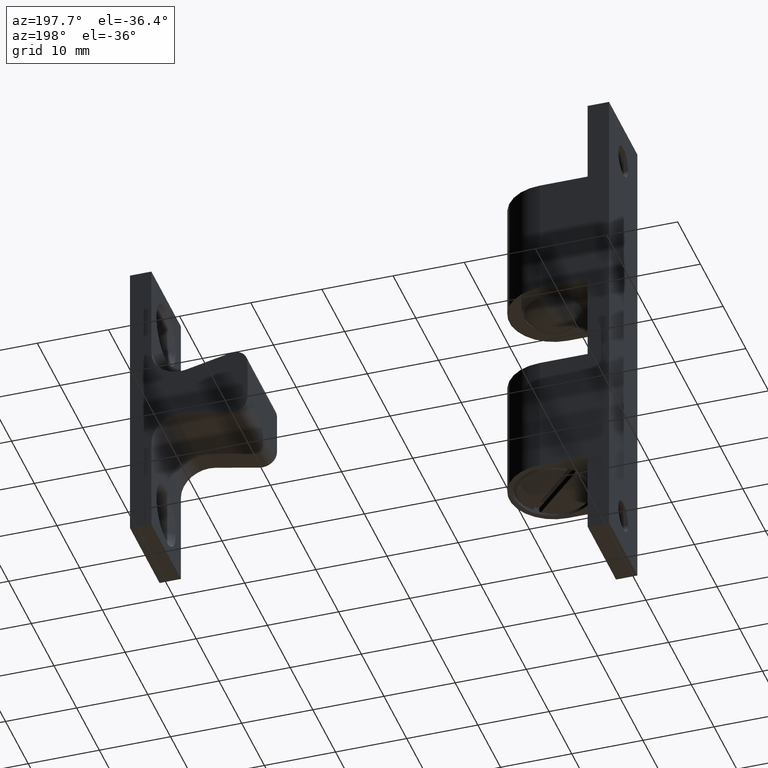
[diagram: clean part render]
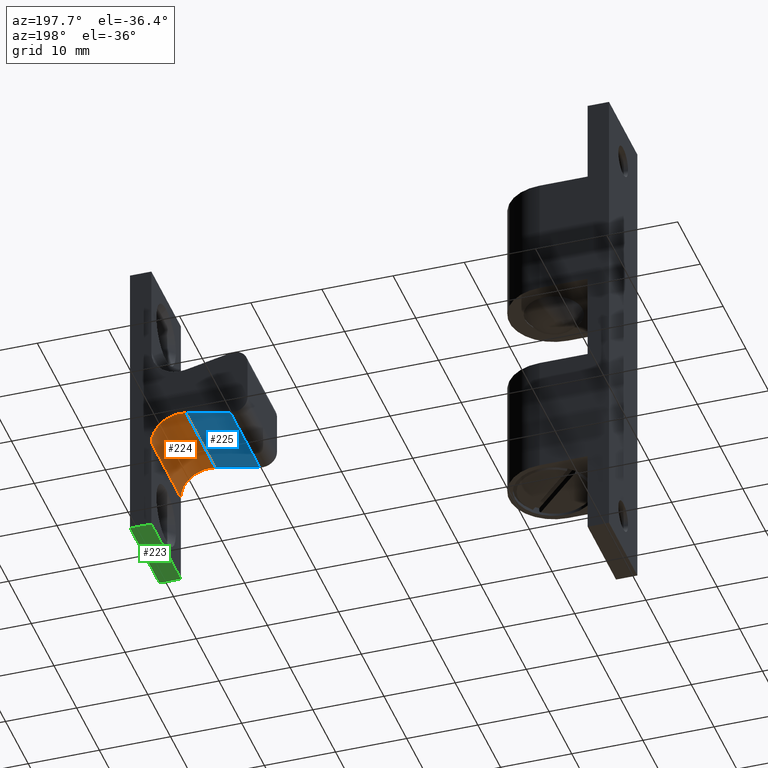
[diagram: same view with three faces highlighted in distinct colors, each labeled with its STEP entity id]
A machine part, auxiliary view with three faces highlighted in distinct colors.
Their STEP definitions:

[orange] entity #224 — the highlighted cylindrical surface (edge-blend (fillet) strip) has radius 4.0004 mm, axis along (-0, -1, -0).
#224=ADVANCED_FACE('',(#480),#479,.F.);
#479=CYLINDRICAL_SURFACE('',#1148,4.00043991056E+00);
#480=FACE_OUTER_BOUND('',#1149,.T.);
#1145=CARTESIAN_POINT('',(6.02334519901E+01,-9.93500000000E+02,-7.50048131368E+00));
#1146=DIRECTION('',(-0.00000000000E+00,-1.00000000000E+00,-0.00000000000E+00));
#1147=DIRECTION('',(-0.00000000000E+00,-0.00000000000E+00,-1.00000000000E+00));
#1148=AXIS2_PLACEMENT_3D('',#1145,#1146,#1147);
#1149=EDGE_LOOP('',(#1562,#1563,#1564,#1565));
#1562=ORIENTED_EDGE('',*,*,#1872,.F.);
#1563=ORIENTED_EDGE('',*,*,#1868,.F.);
#1564=ORIENTED_EDGE('',*,*,#1851,.T.);
#1565=ORIENTED_EDGE('',*,*,#1873,.T.);
#1851=EDGE_CURVE('',#2249,#2242,#2250,.T.);
#1868=EDGE_CURVE('',#2249,#2351,#2365,.T.);
#1872=EDGE_CURVE('',#2351,#2391,#2392,.T.);
#1873=EDGE_CURVE('',#2242,#2391,#2398,.T.);
#2242=VERTEX_POINT('',#3303);
#2249=VERTEX_POINT('',#3307);
#2250=CIRCLE('',#3311,4.00043991056E+00);
#2351=VERTEX_POINT('',#3369);
#2365=LINE('',#3377,#3378);
#2391=VERTEX_POINT('',#3393);
#2392=CIRCLE('',#3397,4.00043991056E+00);
#2398=LINE('',#3398,#3399);
#3303=CARTESIAN_POINT('',(5.93778917893E+01,-6.50000000000E+00,-3.59260001803E+00));
#3307=CARTESIAN_POINT('',(6.42338919006E+01,-6.50000000000E+00,-7.50048131368E+00));
#3308=CARTESIAN_POINT('',(6.02334519901E+01,-6.50000000000E+00,-7.50048131368E+00));
#3309=DIRECTION('',(0.00000000000E+00,-1.00000000000E+00,0.00000000000E+00));
#3310=DIRECTION('',(-0.00000000000E+00,-0.00000000000E+00,-1.00000000000E+00));
#3311=AXIS2_PLACEMENT_3D('',#3308,#3309,#3310);
#3369=CARTESIAN_POINT('',(6.42338919006E+01,6.50000000000E+00,-7.50048131368E+00));
#3377=CARTESIAN_POINT('',(6.42338919006E+01,-6.50000000000E+00,-7.50048131368E+00));
#3378=VECTOR('',#3379,1.30000000000E+01);
#3379=DIRECTION('',(0.00000000000E+00,1.00000000000E+00,0.00000000000E+00));
#3393=CARTESIAN_POINT('',(5.93778917893E+01,6.50000000000E+00,-3.59260001803E+00));
#3394=CARTESIAN_POINT('',(6.02334519901E+01,6.50000000000E+00,-7.50048131368E+00));
#3395=DIRECTION('',(0.00000000000E+00,-1.00000000000E+00,0.00000000000E+00));
#3396=DIRECTION('',(-0.00000000000E+00,-0.00000000000E+00,-1.00000000000E+00));
#3397=AXIS2_PLACEMENT_3D('',#3394,#3395,#3396);
#3398=CARTESIAN_POINT('',(5.93778917893E+01,-6.50000000000E+00,-3.59260001803E+00));
#3399=VECTOR('',#3400,1.30000000000E+01);
#3400=DIRECTION('',(0.00000000000E+00,1.00000000000E+00,0.00000000000E+00));

[blue] entity #225 — the highlighted planar face has unit normal (-0.2139, 0, 0.9769).
#225=ADVANCED_FACE('',(#490),#489,.F.);
#489=PLANE('',#1153);
#490=FACE_OUTER_BOUND('',#1154,.T.);
#1150=CARTESIAN_POINT('',(5.25109661573E+01,-7.80000000000E+00,-5.09598951100E+00));
#1151=DIRECTION('',(-2.13866509064E-01,0.00000000000E+00,9.76862895344E-01));
#1152=DIRECTION('',(9.76862895344E-01,0.00000000000E+00,2.13866509064E-01));
#1153=AXIS2_PLACEMENT_3D('',#1150,#1151,#1152);
#1154=EDGE_LOOP('',(#1566,#1567,#1568,#1569));
#1566=ORIENTED_EDGE('',*,*,#1874,.T.);
#1567=ORIENTED_EDGE('',*,*,#1873,.F.);
#1568=ORIENTED_EDGE('',*,*,#1850,.F.);
#1569=ORIENTED_EDGE('',*,*,#1875,.T.);
#1850=EDGE_CURVE('',#2235,#2242,#2243,.T.);
#1873=EDGE_CURVE('',#2242,#2391,#2398,.T.);
#1874=EDGE_CURVE('',#2404,#2391,#2405,.T.);
#1875=EDGE_CURVE('',#2235,#2404,#2411,.T.);
#2235=VERTEX_POINT('',#3298);
#2242=VERTEX_POINT('',#3303);
#2243=LINE('',#3304,#3305);
#2391=VERTEX_POINT('',#3393);
#2398=LINE('',#3398,#3399);
#2404=VERTEX_POINT('',#3401);
#2405=LINE('',#3402,#3403);
#2411=LINE('',#3405,#3406);
#3298=CARTESIAN_POINT('',(5.31352321238E+01,-6.50000000000E+00,-4.95931773891E+00));
#3303=CARTESIAN_POINT('',(5.93778917893E+01,-6.50000000000E+00,-3.59260001803E+00));
#3304=CARTESIAN_POINT('',(5.31352321238E+01,-6.50000000000E+00,-4.95931773891E+00));
#3305=VECTOR('',#3306,6.39051774334E+00);
#3306=DIRECTION('',(9.76862895344E-01,0.00000000000E+00,2.13866509064E-01));
#3393=CARTESIAN_POINT('',(5.93778917893E+01,6.50000000000E+00,-3.59260001803E+00));
#3398=CARTESIAN_POINT('',(5.93778917893E+01,-6.50000000000E+00,-3.59260001803E+00));
#3399=VECTOR('',#3400,1.30000000000E+01);
#3400=DIRECTION('',(0.00000000000E+00,1.00000000000E+00,0.00000000000E+00));
#3401=CARTESIAN_POINT('',(5.31352321238E+01,6.50000000000E+00,-4.95931773891E+00));
#3402=CARTESIAN_POINT('',(5.31352321238E+01,6.50000000000E+00,-4.95931773891E+00));
#3403=VECTOR('',#3404,6.39051774334E+00);
#3404=DIRECTION('',(9.76862895344E-01,0.00000000000E+00,2.13866509064E-01));
#3405=CARTESIAN_POINT('',(5.31352321238E+01,-6.50000000000E+00,-4.95931773891E+00));
#3406=VECTOR('',#3407,1.30000000000E+01);
#3407=DIRECTION('',(0.00000000000E+00,1.00000000000E+00,0.00000000000E+00));

[green] entity #223 — the highlighted planar face has unit normal (0, 0, 1).
#223=ADVANCED_FACE('',(#470),#469,.F.);
#469=PLANE('',#1143);
#470=FACE_OUTER_BOUND('',#1144,.T.);
#1140=CARTESIAN_POINT('',(6.39338918717E+01,-7.80000000000E+00,-2.10000000000E+01));
#1141=DIRECTION('',(0.00000000000E+00,0.00000000000E+00,1.00000000000E+00));
#1142=DIRECTION('',(1.00000000000E+00,0.00000000000E+00,0.00000000000E+00));
#1143=AXIS2_PLACEMENT_3D('',#1140,#1141,#1142);
#1144=EDGE_LOOP('',(#1558,#1559,#1560,#1561));
#1558=ORIENTED_EDGE('',*,*,#1871,.T.);
#1559=ORIENTED_EDGE('',*,*,#1861,.F.);
#1560=ORIENTED_EDGE('',*,*,#1853,.F.);
#1561=ORIENTED_EDGE('',*,*,#1867,.T.);
#1853=EDGE_CURVE('',#2256,#2263,#2264,.T.);
#1861=EDGE_CURVE('',#2263,#2310,#2317,.T.);
#1867=EDGE_CURVE('',#2256,#2352,#2359,.T.);
#1871=EDGE_CURVE('',#2352,#2310,#2385,.T.);
#2256=VERTEX_POINT('',#3312);
#2263=VERTEX_POINT('',#3316);
#2264=LINE('',#3317,#3318);
#2310=VERTEX_POINT('',#3342);
#2317=LINE('',#3346,#3347);
#2352=VERTEX_POINT('',#3370);
#2359=LINE('',#3374,#3375);
#2385=LINE('',#3390,#3391);
#3312=CARTESIAN_POINT('',(6.42338918717E+01,-6.50000000000E+00,-2.10000000000E+01));
#3316=CARTESIAN_POINT('',(6.72338918717E+01,-6.50000000000E+00,-2.10000000000E+01));
#3317=CARTESIAN_POINT('',(6.42338918717E+01,-6.50000000000E+00,-2.10000000000E+01));
#3318=VECTOR('',#3319,3.00000000000E+00);
#3319=DIRECTION('',(1.00000000000E+00,0.00000000000E+00,0.00000000000E+00));
#3342=CARTESIAN_POINT('',(6.72338918717E+01,6.50000000000E+00,-2.10000000000E+01));
#3346=CARTESIAN_POINT('',(6.72338918717E+01,-6.50000000000E+00,-2.10000000000E+01));
#3347=VECTOR('',#3348,1.30000000000E+01);
#3348=DIRECTION('',(0.00000000000E+00,1.00000000000E+00,0.00000000000E+00));
#3370=CARTESIAN_POINT('',(6.42338918717E+01,6.50000000000E+00,-2.10000000000E+01));
#3374=CARTESIAN_POINT('',(6.42338918717E+01,-6.50000000000E+00,-2.10000000000E+01));
#3375=VECTOR('',#3376,1.30000000000E+01);
#3376=DIRECTION('',(0.00000000000E+00,1.00000000000E+00,0.00000000000E+00));
#3390=CARTESIAN_POINT('',(6.42338918717E+01,6.50000000000E+00,-2.10000000000E+01));
#3391=VECTOR('',#3392,3.00000000000E+00);
#3392=DIRECTION('',(1.00000000000E+00,0.00000000000E+00,0.00000000000E+00));